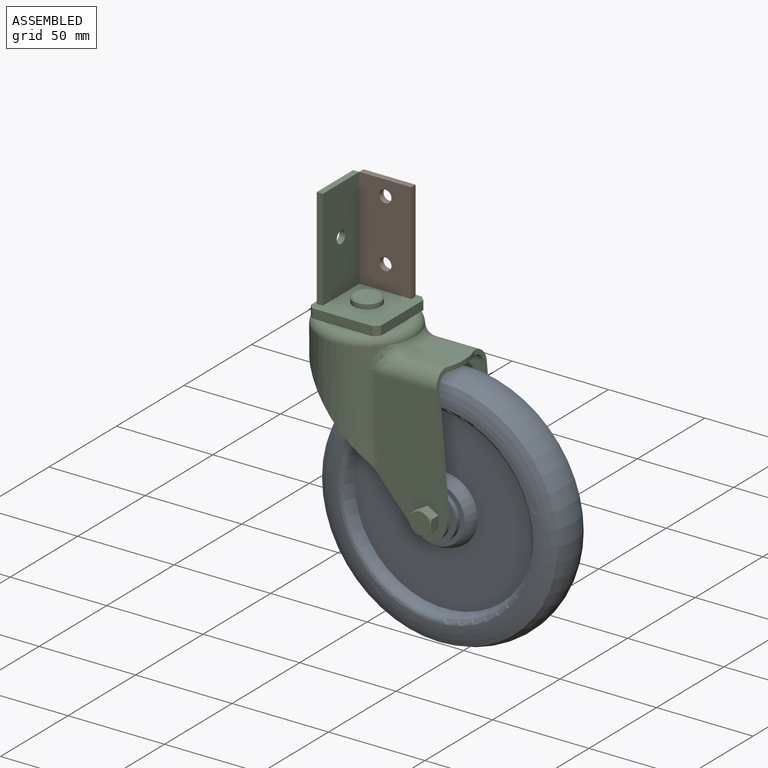
[diagram: assembled view]
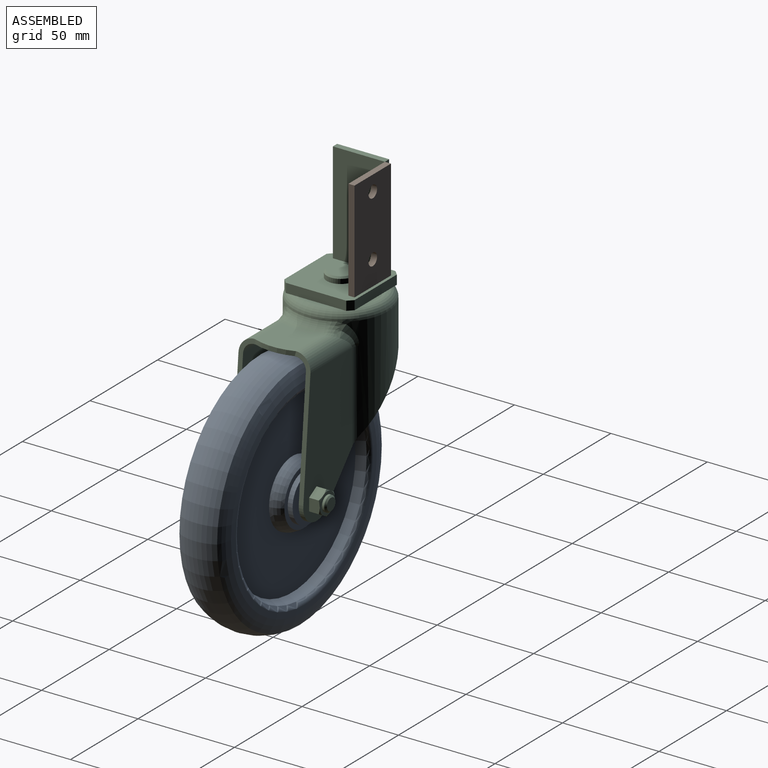
[diagram: assembled view, second angle]
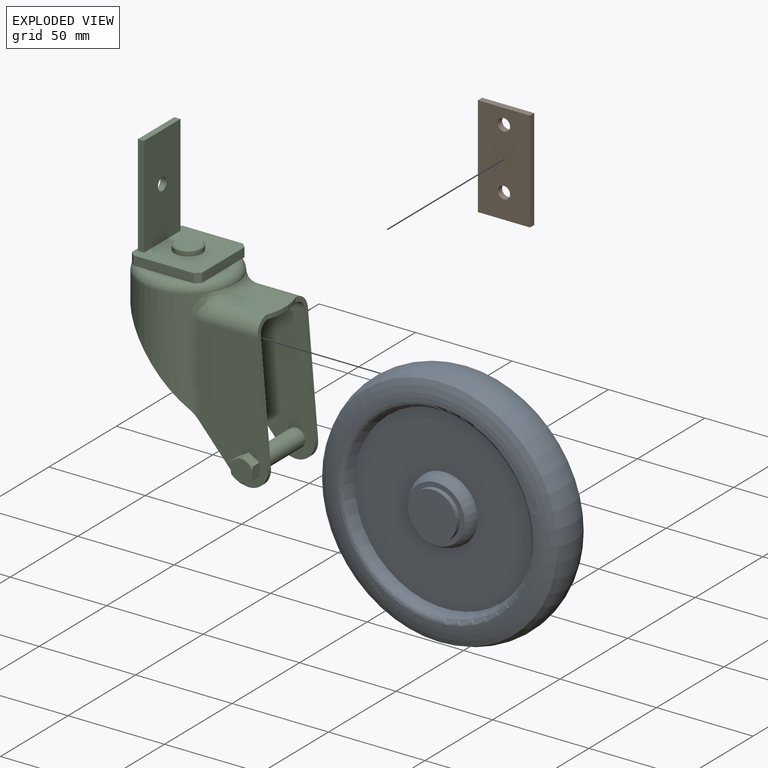
[diagram: exploded view]
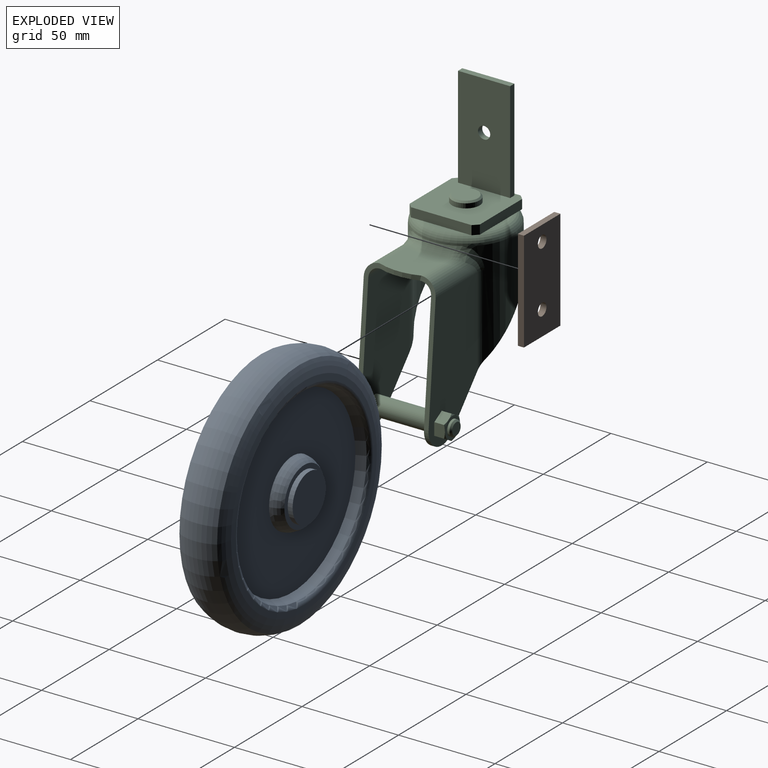
[diagram: exploded view, second angle]
ASSEMBLY  parts=3 mates=2
PART A: 17 faces, bbox 143.2x29.7x143.2 mm
  f0: torus R=50.8mm, axis (0,-1,0), area 933.5mm2, adj f1,f10
  f1: cone r=46.58mm half-angle=22.3deg, axis (0,1,0), area 1475.1mm2, adj f0,f16
  f2: torus R=6.19mm, axis (0,-1,0), area 694.6mm2, adj f15,f16
  f3: cylinder r=12.3mm len=24.61mm, axis (0,-1,0), area 196.3mm2, adj f14,f15
  f4: cylinder r=12.3mm len=24.61mm, axis (0,-1,0), area 196.3mm2, adj f12,f13
  f5: torus R=6.19mm, axis (0,-1,0), area 694.6mm2, adj f11,f12
  f6: cone r=48.45mm half-angle=22.3deg, axis (0,-1,0), area 1475.1mm2, adj f7,f11
  f7: torus R=50.8mm, axis (0,-1,0), area 933.5mm2, adj f6,f8
  f8: torus R=50.8mm, axis (0,-1,0), area 3721mm2, adj f7,f9
  f9: torus R=43.47mm, axis (0,-1,0), area 8028.1mm2, adj f8,f10
  f10: torus R=50.8mm, axis (0,-1,0), area 3721mm2, adj f0,f9
  f11: plane 93.16x93.16mm, normal (0,-1,0), area 5874.2mm2, adj f5,f6
  f12: plane 29.53x29.53mm, normal (0,-1,0), area 209.2mm2, adj f4,f5
  f13: plane 24.61x24.61mm, normal (0,-1,0), area 475.5mm2, adj f4
  f14: plane 24.61x24.61mm, normal (0,1,0), area 475.5mm2, adj f3
  f15: plane 29.53x29.53mm, normal (0,1,0), area 209.2mm2, adj f2,f3
  f16: plane 93.16x93.16mm, normal (0,1,0), area 5874.2mm2, adj f1,f2
PART B: 8 faces, bbox 27x3.2x52.4 mm
  f0: cylinder r=3.17mm len=6.35mm, axis (0,1,0), area 63.3mm2, adj f2,f3
  f1: cylinder r=3.17mm len=6.35mm, axis (0,1,0), area 63.3mm2, adj f2,f3
  f2: plane 52.39x26.99mm, normal (0,-1,0), area 1350.5mm2, adj f0,f1,f4,f5,f6,f7
  f3: plane 52.39x26.99mm, normal (0,1,0), area 1350.5mm2, adj f0,f1,f4,f5,f6,f7
  f4: plane 52.39x3.18mm, normal (-1,0,0), area 166.3mm2, adj f2,f3,f6,f7
  f5: plane 52.39x3.18mm, normal (1,0,0), area 166.3mm2, adj f2,f3,f6,f7
  f6: plane 26.99x3.18mm, normal (0,0,-1), area 85.7mm2, adj f2,f3,f4,f5
  f7: plane 26.99x3.18mm, normal (0,0,1), area 85.7mm2, adj f2,f3,f4,f5
PART C: 91 faces, bbox 81.5x53.8x145.3 mm
  f0: cylinder r=4.76mm len=32.56mm, axis (0,-1,0), area 974.2mm2, adj f44,f45
  f1: cylinder r=22.23mm len=49.96mm, axis (0,0,1), area 2565.3mm2, adj f61,f65,f66,f67,f68,f69
  f2: cylinder r=24.61mm len=53.93mm, axis (0,0,1), area 3033.9mm2, adj f8,f51,f52,f53,f57,f61
  f3: cone r=3.14mm half-angle=45deg, axis (0,-1,0), area 26.1mm2, adj f4,f42
  f4: cylinder r=3.97mm len=7.94mm, axis (0,-1,0), area 30.1mm2, adj f3,f29
  f5: cylinder r=3.17mm len=6.35mm, axis (1,0,0), area 63.3mm2, adj f10,f25
  f6: cone r=6.29mm half-angle=46deg, axis (0,0,-1), area 50.1mm2, adj f7,f27
  f7: cylinder r=7.14mm len=14.29mm, axis (0,0,-1), area 106.6mm2, adj f6,f12
  f8: torus R=19.82mm, axis (0,0,1), area 1024.9mm2, adj f2,f13,f14,f15,f16,f17,f18,f19
  f9: plane 52.39x3.17mm, normal (0,-1,0), area 166.1mm2, adj f11,f12,f25,f28
  f10: plane 52.39x26.98mm, normal (1,0,0), area 1382mm2, adj f5,f11,f12,f26,f28
  f11: plane 26.99x3.18mm, normal (0,0,1), area 85.7mm2, adj f9,f10,f25,f26,f28
  f12: plane 36.41x36.41mm, normal (0,0,1), area 1066.4mm2, adj f7,f9,f10,f20,f21,f22,f23,f25
  f13: plane 9.32x9.32mm, normal (0,0,-1), area 30.4mm2, adj f8,f20,f21,f87
  f14: plane 9.32x9.32mm, normal (0,0,-1), area 30.4mm2, adj f8,f21,f22,f89
  f15: plane 9.32x9.32mm, normal (0,0,-1), area 30.4mm2, adj f8,f22,f23,f90
  f16: plane 9.32x9.32mm, normal (0,0,-1), area 30.4mm2, adj f8,f20,f23,f88
  f17: plane 17.77x2.05mm, normal (0,0,1), area 24.6mm2, adj f8,f21
  f18: plane 17.77x2.05mm, normal (0,0,1), area 24.6mm2, adj f8,f20
  f19: plane 17.77x2.05mm, normal (0,0,1), area 24.6mm2, adj f8,f23
  f20: plane 31.33x4.76mm, normal (-1,0,0), area 149.2mm2, adj f12,f13,f16,f18,f87,f88
  f21: plane 31.33x4.76mm, normal (0,1,0), area 149.2mm2, adj f12,f13,f14,f17,f87,f89
  f22: plane 31.33x4.76mm, normal (1,0,0), area 149.2mm2, adj f12,f14,f15,f24,f89,f90
  f23: plane 31.33x4.76mm, normal (0,-1,0), area 149.2mm2, adj f12,f15,f16,f19,f88,f90
  f24: plane 17.77x2.05mm, normal (0,0,1), area 24.6mm2, adj f8,f22
  f25: plane 52.39x26.99mm, normal (-1,0,0), area 1382.1mm2, adj f5,f9,f11,f12,f26
  f26: plane 52.39x3.18mm, normal (0,1,0), area 166.3mm2, adj f10,f11,f12,f25
  f27: plane 12.58x12.58mm, normal (0,0,1), area 124.3mm2, adj f6
  f28: plane 52.39x0mm, normal (0.71,-0.71,0), area 0.3mm2, adj f9,f10,f11,f12
  f29: plane 11.11x11.11mm, normal (0,1,0), area 47.5mm2, adj f4,f36,f37,f38,f39,f40,f41
  f30: plane 6.08x6.06mm, normal (0.5,0,0.87), area 34.4mm2, adj f31,f35,f40,f41,f46
  f31: plane 6.08x6.06mm, normal (-0.5,0,0.87), area 34.4mm2, adj f30,f32,f39,f40,f46
  f32: plane 6.95x6.07mm, normal (-1,0,0), area 34.4mm2, adj f31,f33,f38,f39,f46
  f33: plane 6.08x6.06mm, normal (-0.5,0,-0.87), area 34.4mm2, adj f32,f34,f37,f38,f46
  f34: plane 6.08x6.06mm, normal (0.5,0,-0.87), area 34.4mm2, adj f33,f35,f36,f37,f46
  f35: plane 6.95x6.07mm, normal (1,0,0), area 34.4mm2, adj f30,f34,f36,f41,f46
  f36: cone r=5.56mm half-angle=60deg, axis (0,-1,0), area 3mm2, adj f29,f34,f35
  f37: cone r=5.56mm half-angle=60deg, axis (0,-1,0), area 3mm2, adj f29,f33,f34
  f38: cone r=5.56mm half-angle=60deg, axis (0,-1,0), area 3mm2, adj f29,f32,f33
  f39: cone r=5.56mm half-angle=60deg, axis (0,-1,0), area 3mm2, adj f29,f31,f32
  f40: cone r=5.56mm half-angle=60deg, axis (0,-1,0), area 3mm2, adj f29,f30,f31
  f41: cone r=5.56mm half-angle=60deg, axis (0,-1,0), area 3mm2, adj f29,f30,f35
  f42: plane 6.29x6.29mm, normal (0,1,0), area 31mm2, adj f3
  f43: plane 70.97x36.04mm, normal (0,-1,0), area 1997.6mm2, adj f47,f50,f52,f58,f61,f81,f82,f83
  f44: plane 70.97x36.04mm, normal (0,1,0), area 2033.3mm2, adj f0,f47,f58,f61,f69,f70
  f45: plane 70.97x36.04mm, normal (0,-1,0), area 2033.3mm2, adj f0,f59,f60,f61,f68,f71
  f46: plane 70.97x36.04mm, normal (0,1,0), area 1997.6mm2, adj f30,f31,f32,f33,f34,f35,f49,f51
  f47: plane 68.5x8.77mm, normal (1,0,0.09), area 169.6mm2, adj f43,f44,f50,f58,f70,f72,f73
  f48: plane 21.77x21.43mm, normal (0,0,1), area 424.4mm2, adj f49,f50,f55,f73
  f49: cylinder r=7.94mm len=30.73mm, axis (-1,0,0), area 314.5mm2, adj f46,f48,f53,f54,f60
  f50: cylinder r=7.94mm len=30.73mm, axis (-1,0,0), area 314.5mm2, adj f43,f47,f48,f56,f57
  f51: cylinder r=6.35mm len=46.28mm, axis (0,0,1), area 176.8mm2, adj f2,f46,f53,f61
  f52: cylinder r=6.35mm len=46.28mm, axis (0,0,1), area 176.8mm2, adj f2,f43,f57,f61
  f53: bspline ~11.9x10.22mm, area 67mm2, adj f2,f49,f51,f54
  f54: bspline ~8.89x6.46mm, area 43.9mm2, adj f8,f49,f53,f55
  f55: torus R=30.49mm, axis (0,0,-1), area 146.8mm2, adj f8,f48,f54,f56
  f56: bspline ~8.89x6.46mm, area 43.9mm2, adj f8,f50,f55,f57
  f57: bspline ~11.9x10.22mm, area 67mm2, adj f2,f50,f52,f56
  f58: cylinder r=9.84mm len=17.23mm, axis (0,1,0), area 58.6mm2, adj f43,f44,f47,f61
  f59: cylinder r=9.84mm len=17.23mm, axis (0,1,0), area 58.6mm2, adj f45,f46,f60,f61
  f60: plane 68.5x8.77mm, normal (1,0,0.09), area 169.6mm2, adj f45,f46,f49,f59,f71,f72,f73
  f61: plane 70.32x61.98mm, normal (-0.75,0,-0.66), area 539.8mm2, adj f1,f2,f43,f44,f45,f46,f51,f52
  f62: torus R=30.49mm, axis (0,0,-1), area 165mm2, adj f63,f64,f65,f72
  f63: bspline ~10.18x5.79mm, area 36.2mm2, adj f62,f65,f66,f71
  f64: bspline ~10.18x5.79mm, area 36.2mm2, adj f62,f65,f67,f70
  f65: plane 45.96x45.02mm, normal (0,0,-1), area 1577.5mm2, adj f1,f62,f63,f64,f66,f67
  f66: bspline ~11.9x11.62mm, area 77mm2, adj f1,f63,f65,f68,f71
  f67: bspline ~11.9x11.62mm, area 77mm2, adj f1,f64,f65,f69,f70
  f68: cylinder r=8.72mm len=46.28mm, axis (0,0,1), area 238.5mm2, adj f1,f45,f61,f66
  f69: cylinder r=8.72mm len=46.28mm, axis (0,0,1), area 238.5mm2, adj f1,f44,f61,f67
  f70: cylinder r=5.56mm len=30.73mm, axis (-1,0,0), area 221.3mm2, adj f44,f47,f64,f67,f72
  f71: cylinder r=5.56mm len=30.73mm, axis (-1,0,0), area 221.3mm2, adj f45,f60,f63,f66,f72
  f72: plane 21.77x21.43mm, normal (0,0,-1), area 424.5mm2, adj f47,f60,f62,f70,f71,f73
  f73: cylinder r=29.27mm len=21.43mm, axis (0,0,1), area 50.7mm2, adj f47,f48,f60,f72
  f74: plane 11.11x11.11mm, normal (0,-1,0), area 97mm2, adj f75,f76,f77,f78,f79,f80
  f75: cone r=5.56mm half-angle=60deg, axis (0,1,0), area 3mm2, adj f74,f85,f86
  f76: cone r=5.56mm half-angle=60deg, axis (0,1,0), area 3mm2, adj f74,f84,f85
  f77: cone r=5.56mm half-angle=60deg, axis (0,1,0), area 3mm2, adj f74,f83,f84
  f78: cone r=5.56mm half-angle=60deg, axis (0,1,0), area 3mm2, adj f74,f82,f83
  f79: cone r=5.56mm half-angle=60deg, axis (0,1,0), area 3mm2, adj f74,f81,f86
  f80: cone r=5.56mm half-angle=60deg, axis (0,1,0), area 3mm2, adj f74,f81,f82
  f81: plane 6.95x6.07mm, normal (1,0,0), area 34.4mm2, adj f43,f79,f80,f82,f86
  f82: plane 6.08x6.06mm, normal (0.5,0,-0.87), area 34.4mm2, adj f43,f78,f80,f81,f83
  f83: plane 6.08x6.06mm, normal (-0.5,0,-0.87), area 34.4mm2, adj f43,f77,f78,f82,f84
  f84: plane 6.95x6.07mm, normal (-1,0,0), area 34.4mm2, adj f43,f76,f77,f83,f85
  f85: plane 6.08x6.06mm, normal (-0.5,0,0.87), area 34.4mm2, adj f43,f75,f76,f84,f86
  f86: plane 6.08x6.06mm, normal (0.5,0,0.87), area 34.4mm2, adj f43,f75,f79,f81,f85
  f87: plane 4.76x2.54mm, normal (-0.71,0.71,0), area 17.1mm2, adj f12,f13,f20,f21
  f88: plane 4.76x2.54mm, normal (-0.71,-0.71,0), area 17.1mm2, adj f12,f16,f20,f23
  f89: plane 4.76x2.54mm, normal (0.71,0.71,0), area 17.1mm2, adj f12,f14,f21,f22
  f90: plane 4.76x2.54mm, normal (0.71,-0.71,0), area 17.1mm2, adj f12,f15,f22,f23
PLACE A at identity
PLACE B at identity
PLACE C at identity
MATE fastened C.f26 <-> B.f2  axis (0,1,0) through (-13.49,13.49,9.52)mm
MATE fastened C.f0 <-> A.f0  axis (0,-1,0) through (44.45,16.28,-73.03)mm
